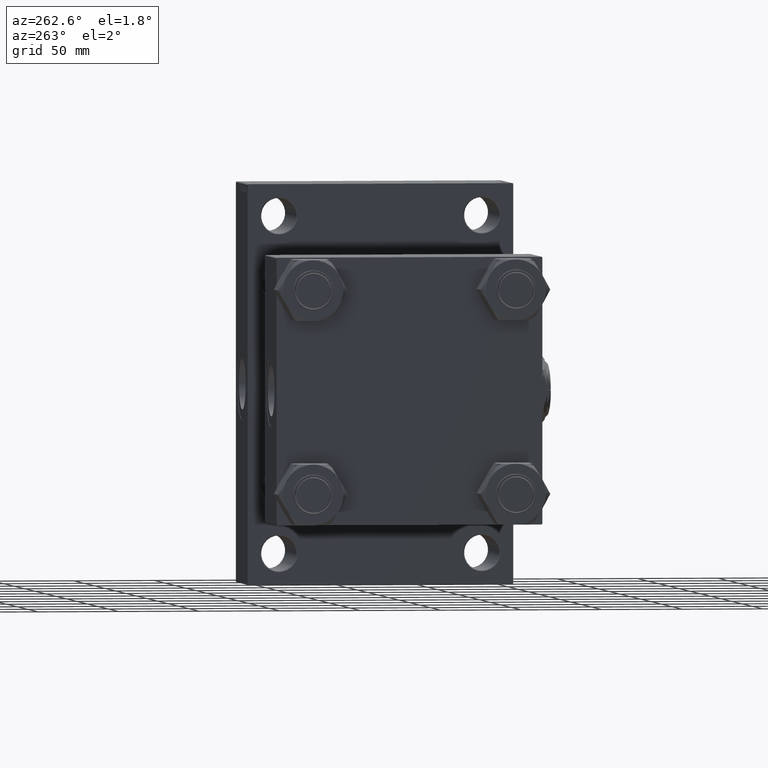
[diagram: clean part render]
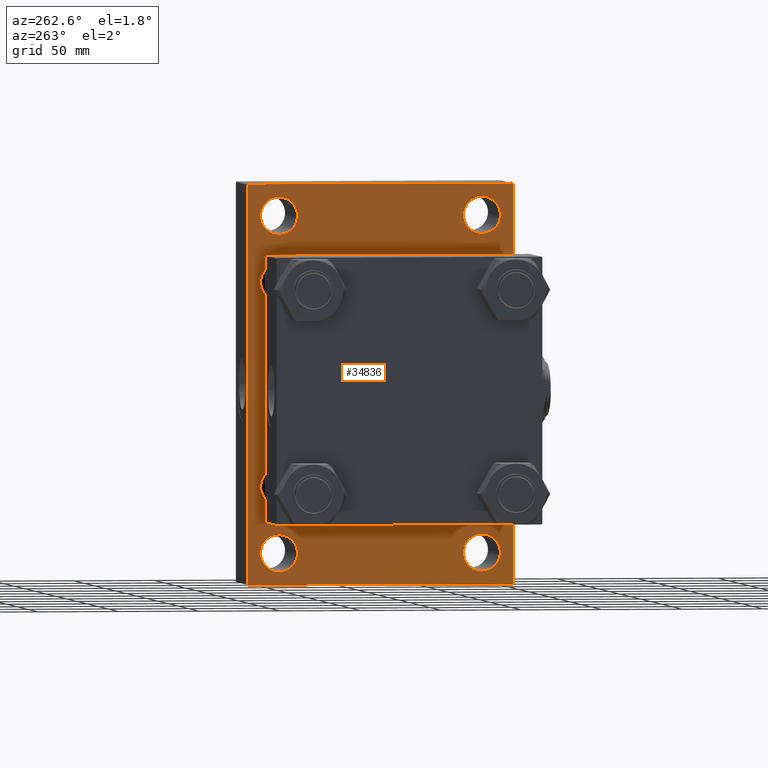
[diagram: same view with one face highlighted and labeled with its STEP entity id]
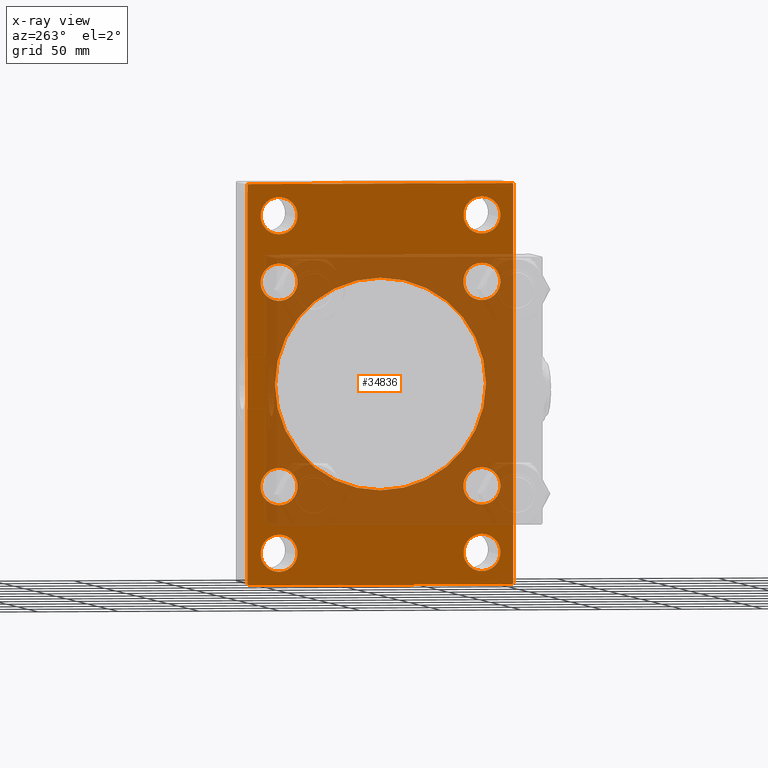
[diagram: x-ray of the same camera — body ghosted, the highlighted face saturated]
A machine part, auxiliary view. The second image highlights one B-rep face of the part: STEP entity #34836.
The next image is the same camera in x-ray: the body ghosted, the highlighted face saturated — about 45% of this face is hidden behind the body in this view.
In plain terms, the highlighted planar face has unit normal (-1, 0, 0).
Its self-contained STEP definition (entity closure, byte-faithful):
#11 = EDGE_LOOP ( 'NONE', ( #40195, #45547 ) ) ;
#81 = CARTESIAN_POINT ( 'NONE',  ( 139.0000000000000000, -63.00000000000000000, 92.49999999999997158 ) ) ;
#334 = CARTESIAN_POINT ( 'NONE',  ( 139.0000000000000000, 62.95000000000000284, 62.95000000000000284 ) ) ;
#359 = AXIS2_PLACEMENT_3D ( 'NONE', #26367, #41776, #19535 ) ;
#531 = ORIENTED_EDGE ( 'NONE', *, *, #44500, .T. ) ;
#672 = CARTESIAN_POINT ( 'NONE',  ( 139.0000000000000000, -62.94999999999998153, -62.95000000000001705 ) ) ;
#783 = CARTESIAN_POINT ( 'NONE',  ( 139.0000000000000000, -102.7499999999988916, -102.7500000000017479 ) ) ;
#827 = DIRECTION ( 'NONE',  ( 0.000000000000000000, 0.000000000000000000, 1.000000000000000000 ) ) ;
#862 = FACE_BOUND ( 'NONE', #28816, .T. ) ;
#994 = CARTESIAN_POINT ( 'NONE',  ( 139.0000000000000000, 63.00000000000000000, -115.5000000000000142 ) ) ;
#1054 = EDGE_CURVE ( 'NONE', #43883, #6599, #35567, .T. ) ;
#1106 = FACE_BOUND ( 'NONE', #11, .T. ) ;
#1349 = DIRECTION ( 'NONE',  ( -0.000000000000000000, 0.000000000000000000, 1.000000000000000000 ) ) ;
#2065 = CARTESIAN_POINT ( 'NONE',  ( 139.0000000000000000, 63.00000000000000000, 104.0000000000000000 ) ) ;
#2169 = ORIENTED_EDGE ( 'NONE', *, *, #1054, .T. ) ;
#2320 = ORIENTED_EDGE ( 'NONE', *, *, #33524, .T. ) ;
#2339 = ORIENTED_EDGE ( 'NONE', *, *, #22973, .T. ) ;
#2595 = DIRECTION ( 'NONE',  ( 0.000000000000000000, 0.000000000000000000, 1.000000000000000000 ) ) ;
#2825 = EDGE_LOOP ( 'NONE', ( #34717, #12685 ) ) ;
#3077 = CARTESIAN_POINT ( 'NONE',  ( 139.0000000000000000, -62.94999999999998153, 62.95000000000001705 ) ) ;
#3181 = VERTEX_POINT ( 'NONE', #35180 ) ;
#3464 = AXIS2_PLACEMENT_3D ( 'NONE', #17461, #28100, #24803 ) ;
#4150 = VERTEX_POINT ( 'NONE', #6727 ) ;
#4330 = EDGE_CURVE ( 'NONE', #47712, #39829, #37856, .T. ) ;
#4336 = EDGE_CURVE ( 'NONE', #23852, #47158, #31409, .T. ) ;
#4452 = AXIS2_PLACEMENT_3D ( 'NONE', #40809, #36511, #32971 ) ;
#4831 = CARTESIAN_POINT ( 'NONE',  ( 139.0000000000000000, 62.95000000000000284, 62.95000000000000284 ) ) ;
#4992 = CARTESIAN_POINT ( 'NONE',  ( 139.0000000000000000, 82.50000000000000000, -123.0000000000000995 ) ) ;
#5194 = LINE ( 'NONE', #20828, #5681 ) ;
#5546 = EDGE_CURVE ( 'NONE', #28701, #44408, #20147, .T. ) ;
#5675 = DIRECTION ( 'NONE',  ( -0.000000000000000000, -0.7071067811865769936, -0.7071067811865181518 ) ) ;
#5681 = VECTOR ( 'NONE', #36010, 1000.000000000000000 ) ;
#6423 = CIRCLE ( 'NONE', #35466, 11.50000000000001066 ) ;
#6599 = VERTEX_POINT ( 'NONE', #32682 ) ;
#6727 = CARTESIAN_POINT ( 'NONE',  ( 139.0000000000000000, 63.00000000000000000, -92.50000000000000000 ) ) ;
#6964 = VERTEX_POINT ( 'NONE', #15389 ) ;
#7147 = ORIENTED_EDGE ( 'NONE', *, *, #4330, .T. ) ;
#7752 = EDGE_CURVE ( 'NONE', #6964, #16685, #5194, .T. ) ;
#7899 = CIRCLE ( 'NONE', #12066, 65.50000000000001421 ) ;
#8323 = VERTEX_POINT ( 'NONE', #994 ) ;
#8394 = DIRECTION ( 'NONE',  ( 0.000000000000000000, 0.000000000000000000, 1.000000000000000000 ) ) ;
#8432 = FACE_BOUND ( 'NONE', #2825, .T. ) ;
#8734 = DIRECTION ( 'NONE',  ( 1.000000000000000000, -0.000000000000000000, 0.000000000000000000 ) ) ;
#8878 = CARTESIAN_POINT ( 'NONE',  ( 139.0000000000000000, 82.49999999999998579, 123.5000000000000142 ) ) ;
#9083 = EDGE_LOOP ( 'NONE', ( #30902, #7147 ) ) ;
#9360 = CARTESIAN_POINT ( 'NONE',  ( 139.0000000000000000, 62.95000000000000284, 51.45000000000000995 ) ) ;
#9376 = LINE ( 'NONE', #8878, #40338 ) ;
#9714 = AXIS2_PLACEMENT_3D ( 'NONE', #24846, #24355, #43318 ) ;
#9820 = VERTEX_POINT ( 'NONE', #21536 ) ;
#10548 = EDGE_CURVE ( 'NONE', #45380, #17076, #25047, .T. ) ;
#10623 = CARTESIAN_POINT ( 'NONE',  ( 139.0000000000000000, -63.00000000000000000, 103.9999999999999858 ) ) ;
#10794 = ORIENTED_EDGE ( 'NONE', *, *, #46258, .T. ) ;
#11227 = AXIS2_PLACEMENT_3D ( 'NONE', #2065, #17456, #16531 ) ;
#11273 = DIRECTION ( 'NONE',  ( 1.000000000000000000, 0.000000000000000000, 0.000000000000000000 ) ) ;
#11638 = EDGE_CURVE ( 'NONE', #35003, #9820, #37207, .T. ) ;
#11779 = DIRECTION ( 'NONE',  ( 0.000000000000000000, 0.000000000000000000, -1.000000000000000000 ) ) ;
#11791 = DIRECTION ( 'NONE',  ( 0.000000000000000000, 0.000000000000000000, 1.000000000000000000 ) ) ;
#12066 = AXIS2_PLACEMENT_3D ( 'NONE', #13782, #24406, #21099 ) ;
#12536 = DIRECTION ( 'NONE',  ( 0.000000000000000000, 0.000000000000000000, 1.000000000000000000 ) ) ;
#12685 = ORIENTED_EDGE ( 'NONE', *, *, #11638, .T. ) ;
#12728 = CARTESIAN_POINT ( 'NONE',  ( 139.0000000000000000, 82.00000000000005684, -123.5000000000000000 ) ) ;
#13210 = DIRECTION ( 'NONE',  ( -1.000000000000000000, 0.000000000000000000, -0.000000000000000000 ) ) ;
#13242 = VECTOR ( 'NONE', #5675, 1000.000000000000000 ) ;
#13527 = LINE ( 'NONE', #32244, #42095 ) ;
#13542 = VECTOR ( 'NONE', #43645, 1000.000000000000000 ) ;
#13686 = ORIENTED_EDGE ( 'NONE', *, *, #4336, .T. ) ;
#13782 = CARTESIAN_POINT ( 'NONE',  ( 139.0000000000000000, -2.602085213965210642E-15, 0.000000000000000000 ) ) ;
#13824 = AXIS2_PLACEMENT_3D ( 'NONE', #4831, #46763, #35653 ) ;
#13826 = DIRECTION ( 'NONE',  ( 0.000000000000000000, -0.7071067811865573427, 0.7071067811865378028 ) ) ;
#13958 = DIRECTION ( 'NONE',  ( 1.000000000000000000, -0.000000000000000000, 0.000000000000000000 ) ) ;
#14004 = CARTESIAN_POINT ( 'NONE',  ( 139.0000000000000000, 102.7499999999966320, -102.7500000000051870 ) ) ;
#14102 = EDGE_LOOP ( 'NONE', ( #30579, #31141 ) ) ;
#14203 = DIRECTION ( 'NONE',  ( 1.000000000000000000, -0.000000000000000000, 0.000000000000000000 ) ) ;
#14233 = ORIENTED_EDGE ( 'NONE', *, *, #48106, .T. ) ;
#15115 = AXIS2_PLACEMENT_3D ( 'NONE', #21592, #33973, #22582 ) ;
#15306 = ORIENTED_EDGE ( 'NONE', *, *, #7752, .T. ) ;
#15389 = CARTESIAN_POINT ( 'NONE',  ( 139.0000000000000000, 82.49999999999998579, 123.0000000000000142 ) ) ;
#15875 = LINE ( 'NONE', #30545, #20091 ) ;
#16036 = CARTESIAN_POINT ( 'NONE',  ( 139.0000000000000000, -63.00000000000000000, -104.0000000000000142 ) ) ;
#16531 = DIRECTION ( 'NONE',  ( 0.000000000000000000, 0.000000000000000000, 1.000000000000000000 ) ) ;
#16685 = VERTEX_POINT ( 'NONE', #4992 ) ;
#16943 = CARTESIAN_POINT ( 'NONE',  ( 139.0000000000000000, -62.94999999999998153, 51.45000000000000995 ) ) ;
#17076 = VERTEX_POINT ( 'NONE', #20074 ) ;
#17456 = DIRECTION ( 'NONE',  ( 1.000000000000000000, -0.000000000000000000, 0.000000000000000000 ) ) ;
#17461 = CARTESIAN_POINT ( 'NONE',  ( 139.0000000000000000, -63.00000000000000000, -104.0000000000000142 ) ) ;
#17690 = ORIENTED_EDGE ( 'NONE', *, *, #43417, .T. ) ;
#17740 = VECTOR ( 'NONE', #13826, 1000.000000000000000 ) ;
#18223 = EDGE_CURVE ( 'NONE', #16685, #32351, #24867, .T. ) ;
#18226 = DIRECTION ( 'NONE',  ( 0.000000000000000000, 0.000000000000000000, 1.000000000000000000 ) ) ;
#18407 = CARTESIAN_POINT ( 'NONE',  ( 139.0000000000000000, 82.00000000000004263, 123.5000000000000142 ) ) ;
#18439 = DIRECTION ( 'NONE',  ( 1.000000000000000000, -0.000000000000000000, 0.000000000000000000 ) ) ;
#18440 = ORIENTED_EDGE ( 'NONE', *, *, #28283, .T. ) ;
#18686 = DIRECTION ( 'NONE',  ( 0.000000000000000000, 0.000000000000000000, -1.000000000000000000 ) ) ;
#18961 = CARTESIAN_POINT ( 'NONE',  ( 139.0000000000000000, -63.00000000000000000, -115.5000000000000142 ) ) ;
#19352 = CARTESIAN_POINT ( 'NONE',  ( 139.0000000000000000, -2.602085213965210642E-15, 0.000000000000000000 ) ) ;
#19535 = DIRECTION ( 'NONE',  ( 0.000000000000000000, 0.000000000000000000, 1.000000000000000000 ) ) ;
#19984 = VERTEX_POINT ( 'NONE', #18407 ) ;
#20074 = CARTESIAN_POINT ( 'NONE',  ( 139.0000000000000000, -63.00000000000000000, 115.4999999999999858 ) ) ;
#20091 = VECTOR ( 'NONE', #45940, 1000.000000000000000 ) ;
#20147 = CIRCLE ( 'NONE', #48385, 11.50000000000001066 ) ;
#20445 = DIRECTION ( 'NONE',  ( 0.000000000000000000, 0.000000000000000000, 1.000000000000000000 ) ) ;
#20492 = EDGE_CURVE ( 'NONE', #30319, #44283, #32684, .T. ) ;
#20778 = FACE_OUTER_BOUND ( 'NONE', #37008, .T. ) ;
#20828 = CARTESIAN_POINT ( 'NONE',  ( 139.0000000000000000, 82.49999999999998579, 123.5000000000000142 ) ) ;
#20948 = EDGE_CURVE ( 'NONE', #44408, #28701, #38359, .T. ) ;
#21099 = DIRECTION ( 'NONE',  ( 0.000000000000000000, 0.000000000000000000, -1.000000000000000000 ) ) ;
#21164 = AXIS2_PLACEMENT_3D ( 'NONE', #48066, #13958, #2595 ) ;
#21521 = ORIENTED_EDGE ( 'NONE', *, *, #20492, .T. ) ;
#21536 = CARTESIAN_POINT ( 'NONE',  ( 139.0000000000000000, 62.95000000000000284, 74.45000000000000284 ) ) ;
#21592 = CARTESIAN_POINT ( 'NONE',  ( 139.0000000000000000, 63.00000000000000000, 104.0000000000000000 ) ) ;
#21711 = AXIS2_PLACEMENT_3D ( 'NONE', #39759, #13210, #1349 ) ;
#22442 = CARTESIAN_POINT ( 'NONE',  ( 139.0000000000000000, -62.94999999999998153, -74.45000000000001705 ) ) ;
#22453 = CIRCLE ( 'NONE', #28933, 65.50000000000001421 ) ;
#22582 = DIRECTION ( 'NONE',  ( 0.000000000000000000, 0.000000000000000000, 1.000000000000000000 ) ) ;
#22726 = DIRECTION ( 'NONE',  ( 0.000000000000000000, 0.000000000000000000, 1.000000000000000000 ) ) ;
#22973 = EDGE_CURVE ( 'NONE', #48971, #47720, #48442, .T. ) ;
#23573 = EDGE_CURVE ( 'NONE', #37426, #3181, #48790, .T. ) ;
#23852 = VERTEX_POINT ( 'NONE', #18961 ) ;
#24334 = PLANE ( 'NONE',  #21711 ) ;
#24355 = DIRECTION ( 'NONE',  ( 1.000000000000000000, -0.000000000000000000, 0.000000000000000000 ) ) ;
#24406 = DIRECTION ( 'NONE',  ( 1.000000000000000000, 0.000000000000000000, 0.000000000000000000 ) ) ;
#24735 = DIRECTION ( 'NONE',  ( 1.000000000000000000, -0.000000000000000000, 0.000000000000000000 ) ) ;
#24803 = DIRECTION ( 'NONE',  ( 0.000000000000000000, 0.000000000000000000, 1.000000000000000000 ) ) ;
#24846 = CARTESIAN_POINT ( 'NONE',  ( 139.0000000000000000, -63.00000000000000000, 103.9999999999999858 ) ) ;
#24867 = LINE ( 'NONE', #14004, #13242 ) ;
#25047 = CIRCLE ( 'NONE', #9714, 11.50000000000001066 ) ;
#26367 = CARTESIAN_POINT ( 'NONE',  ( 139.0000000000000000, -62.94999999999998153, -62.95000000000001705 ) ) ;
#26704 = AXIS2_PLACEMENT_3D ( 'NONE', #334, #27352, #827 ) ;
#27248 = CIRCLE ( 'NONE', #15115, 11.50000000000001066 ) ;
#27352 = DIRECTION ( 'NONE',  ( 1.000000000000000000, -0.000000000000000000, 0.000000000000000000 ) ) ;
#28100 = DIRECTION ( 'NONE',  ( 1.000000000000000000, -0.000000000000000000, 0.000000000000000000 ) ) ;
#28283 = EDGE_CURVE ( 'NONE', #44283, #30319, #32015, .T. ) ;
#28383 = FACE_BOUND ( 'NONE', #14102, .T. ) ;
#28545 = CARTESIAN_POINT ( 'NONE',  ( 139.0000000000000000, -62.94999999999998153, 74.45000000000003126 ) ) ;
#28582 = ORIENTED_EDGE ( 'NONE', *, *, #39050, .F. ) ;
#28633 = FACE_BOUND ( 'NONE', #44580, .T. ) ;
#28701 = VERTEX_POINT ( 'NONE', #28545 ) ;
#28816 = EDGE_LOOP ( 'NONE', ( #10794, #13686 ) ) ;
#28933 = AXIS2_PLACEMENT_3D ( 'NONE', #19352, #11273, #11779 ) ;
#29102 = DIRECTION ( 'NONE',  ( 1.000000000000000000, -0.000000000000000000, 0.000000000000000000 ) ) ;
#29343 = CARTESIAN_POINT ( 'NONE',  ( 139.0000000000000000, -82.50000000000002842, 123.4999999999999716 ) ) ;
#30086 = LINE ( 'NONE', #29343, #39431 ) ;
#30319 = VERTEX_POINT ( 'NONE', #32958 ) ;
#30545 = CARTESIAN_POINT ( 'NONE',  ( 139.0000000000000000, 82.50000000000000000, -123.5000000000000000 ) ) ;
#30579 = ORIENTED_EDGE ( 'NONE', *, *, #37646, .T. ) ;
#30900 = DIRECTION ( 'NONE',  ( 1.000000000000000000, -0.000000000000000000, 0.000000000000000000 ) ) ;
#30902 = ORIENTED_EDGE ( 'NONE', *, *, #31267, .T. ) ;
#31141 = ORIENTED_EDGE ( 'NONE', *, *, #35373, .T. ) ;
#31267 = EDGE_CURVE ( 'NONE', #39829, #47712, #27248, .T. ) ;
#31409 = CIRCLE ( 'NONE', #47554, 11.50000000000001066 ) ;
#31736 = CARTESIAN_POINT ( 'NONE',  ( 139.0000000000000000, -82.50000000000002842, -123.0000000000000284 ) ) ;
#31795 = AXIS2_PLACEMENT_3D ( 'NONE', #3077, #14203, #18226 ) ;
#31926 = FACE_BOUND ( 'NONE', #9083, .T. ) ;
#32015 = CIRCLE ( 'NONE', #32800, 11.49999999999999645 ) ;
#32244 = CARTESIAN_POINT ( 'NONE',  ( 139.0000000000000000, 102.7500000000046043, 102.7499999999931788 ) ) ;
#32323 = CARTESIAN_POINT ( 'NONE',  ( 139.0000000000000000, 63.00000000000000000, -104.0000000000000142 ) ) ;
#32351 = VERTEX_POINT ( 'NONE', #12728 ) ;
#32682 = CARTESIAN_POINT ( 'NONE',  ( 139.0000000000000000, -82.00000000000009948, 123.4999999999999716 ) ) ;
#32684 = CIRCLE ( 'NONE', #4452, 11.49999999999999645 ) ;
#32707 = EDGE_CURVE ( 'NONE', #43883, #47720, #30086, .T. ) ;
#32800 = AXIS2_PLACEMENT_3D ( 'NONE', #46538, #30900, #8394 ) ;
#32958 = CARTESIAN_POINT ( 'NONE',  ( 139.0000000000000000, 62.95000000000000284, -74.45000000000000284 ) ) ;
#32971 = DIRECTION ( 'NONE',  ( 0.000000000000000000, 0.000000000000000000, 1.000000000000000000 ) ) ;
#33113 = CARTESIAN_POINT ( 'NONE',  ( 139.0000000000000000, 5.419351320449953395E-15, -65.50000000000001421 ) ) ;
#33347 = CARTESIAN_POINT ( 'NONE',  ( 139.0000000000000000, -63.00000000000000000, -92.50000000000000000 ) ) ;
#33524 = EDGE_CURVE ( 'NONE', #32351, #48971, #15875, .T. ) ;
#33973 = DIRECTION ( 'NONE',  ( 1.000000000000000000, -0.000000000000000000, 0.000000000000000000 ) ) ;
#34053 = AXIS2_PLACEMENT_3D ( 'NONE', #10623, #18439, #22726 ) ;
#34467 = CARTESIAN_POINT ( 'NONE',  ( 139.0000000000000000, -82.00000000000002842, -123.5000000000000142 ) ) ;
#34717 = ORIENTED_EDGE ( 'NONE', *, *, #42112, .T. ) ;
#34836 = ADVANCED_FACE ( 'NONE', ( #44045, #862, #40000, #31926, #1106, #8432, #47828, #28633, #28383, #20778 ), #24334, .T. ) ;
#34919 = CIRCLE ( 'NONE', #49451, 11.49999999999999645 ) ;
#35003 = VERTEX_POINT ( 'NONE', #9360 ) ;
#35053 = VERTEX_POINT ( 'NONE', #33113 ) ;
#35152 = EDGE_LOOP ( 'NONE', ( #18440, #21521 ) ) ;
#35180 = CARTESIAN_POINT ( 'NONE',  ( 139.0000000000000000, -62.94999999999998153, -51.45000000000002416 ) ) ;
#35288 = DIRECTION ( 'NONE',  ( 1.000000000000000000, -0.000000000000000000, 0.000000000000000000 ) ) ;
#35373 = EDGE_CURVE ( 'NONE', #35053, #39725, #7899, .T. ) ;
#35466 = AXIS2_PLACEMENT_3D ( 'NONE', #32323, #24735, #20445 ) ;
#35551 = ORIENTED_EDGE ( 'NONE', *, *, #23573, .T. ) ;
#35567 = LINE ( 'NONE', #39852, #13542 ) ;
#35620 = CIRCLE ( 'NONE', #13824, 11.49999999999999645 ) ;
#35653 = DIRECTION ( 'NONE',  ( 0.000000000000000000, 0.000000000000000000, 1.000000000000000000 ) ) ;
#35671 = CARTESIAN_POINT ( 'NONE',  ( 139.0000000000000000, 62.95000000000000284, -51.45000000000000995 ) ) ;
#35753 = CIRCLE ( 'NONE', #3464, 11.50000000000001066 ) ;
#35760 = ORIENTED_EDGE ( 'NONE', *, *, #48705, .T. ) ;
#35813 = EDGE_LOOP ( 'NONE', ( #43287, #14233 ) ) ;
#36010 = DIRECTION ( 'NONE',  ( 0.000000000000000000, 5.618537574013950123E-17, -1.000000000000000000 ) ) ;
#36031 = DIRECTION ( 'NONE',  ( 0.000000000000000000, 0.7071067811865081598, -0.7071067811865868746 ) ) ;
#36511 = DIRECTION ( 'NONE',  ( 1.000000000000000000, -0.000000000000000000, 0.000000000000000000 ) ) ;
#36679 = DIRECTION ( 'NONE',  ( 0.000000000000000000, 0.000000000000000000, 1.000000000000000000 ) ) ;
#37008 = EDGE_LOOP ( 'NONE', ( #2320, #2339, #40778, #2169, #28582, #17690, #15306, #43074 ) ) ;
#37207 = CIRCLE ( 'NONE', #26704, 11.49999999999999645 ) ;
#37426 = VERTEX_POINT ( 'NONE', #22442 ) ;
#37646 = EDGE_CURVE ( 'NONE', #39725, #35053, #22453, .T. ) ;
#37856 = CIRCLE ( 'NONE', #11227, 11.50000000000001066 ) ;
#38359 = CIRCLE ( 'NONE', #31795, 11.50000000000001066 ) ;
#38713 = CARTESIAN_POINT ( 'NONE',  ( 139.0000000000000000, -82.50000000000002842, 123.0000000000000853 ) ) ;
#39050 = EDGE_CURVE ( 'NONE', #19984, #6599, #9376, .T. ) ;
#39348 = EDGE_CURVE ( 'NONE', #4150, #8323, #6423, .T. ) ;
#39431 = VECTOR ( 'NONE', #18686, 1000.000000000000000 ) ;
#39455 = DIRECTION ( 'NONE',  ( 0.000000000000000000, -1.000000000000000000, -2.523234146875355505E-16 ) ) ;
#39719 = CIRCLE ( 'NONE', #21164, 11.50000000000001066 ) ;
#39725 = VERTEX_POINT ( 'NONE', #45116 ) ;
#39759 = CARTESIAN_POINT ( 'NONE',  ( 139.0000000000000000, 0.000000000000000000, 0.000000000000000000 ) ) ;
#39829 = VERTEX_POINT ( 'NONE', #49161 ) ;
#39852 = CARTESIAN_POINT ( 'NONE',  ( 139.0000000000000000, -102.7499999999966036, 102.7500000000051728 ) ) ;
#40000 = FACE_BOUND ( 'NONE', #35813, .T. ) ;
#40195 = ORIENTED_EDGE ( 'NONE', *, *, #5546, .T. ) ;
#40338 = VECTOR ( 'NONE', #39455, 1000.000000000000000 ) ;
#40778 = ORIENTED_EDGE ( 'NONE', *, *, #32707, .F. ) ;
#40809 = CARTESIAN_POINT ( 'NONE',  ( 139.0000000000000000, 62.95000000000000284, -62.95000000000000284 ) ) ;
#41131 = EDGE_LOOP ( 'NONE', ( #531, #41560 ) ) ;
#41300 = CIRCLE ( 'NONE', #34053, 11.50000000000001066 ) ;
#41560 = ORIENTED_EDGE ( 'NONE', *, *, #10548, .T. ) ;
#41776 = DIRECTION ( 'NONE',  ( 1.000000000000000000, -0.000000000000000000, 0.000000000000000000 ) ) ;
#42095 = VECTOR ( 'NONE', #36031, 1000.000000000000000 ) ;
#42112 = EDGE_CURVE ( 'NONE', #9820, #35003, #35620, .T. ) ;
#42879 = CARTESIAN_POINT ( 'NONE',  ( 139.0000000000000000, -62.94999999999998153, 62.95000000000001705 ) ) ;
#43074 = ORIENTED_EDGE ( 'NONE', *, *, #18223, .T. ) ;
#43287 = ORIENTED_EDGE ( 'NONE', *, *, #39348, .T. ) ;
#43318 = DIRECTION ( 'NONE',  ( 0.000000000000000000, 0.000000000000000000, 1.000000000000000000 ) ) ;
#43417 = EDGE_CURVE ( 'NONE', #19984, #6964, #13527, .T. ) ;
#43645 = DIRECTION ( 'NONE',  ( -0.000000000000000000, 0.7071067811865769936, 0.7071067811865181518 ) ) ;
#43883 = VERTEX_POINT ( 'NONE', #38713 ) ;
#44045 = FACE_BOUND ( 'NONE', #41131, .T. ) ;
#44283 = VERTEX_POINT ( 'NONE', #35671 ) ;
#44408 = VERTEX_POINT ( 'NONE', #16943 ) ;
#44500 = EDGE_CURVE ( 'NONE', #17076, #45380, #41300, .T. ) ;
#44580 = EDGE_LOOP ( 'NONE', ( #35760, #35551 ) ) ;
#45116 = CARTESIAN_POINT ( 'NONE',  ( 139.0000000000000000, -2.602085213965210642E-15, 65.50000000000001421 ) ) ;
#45380 = VERTEX_POINT ( 'NONE', #81 ) ;
#45547 = ORIENTED_EDGE ( 'NONE', *, *, #20948, .T. ) ;
#45940 = DIRECTION ( 'NONE',  ( 0.000000000000000000, -1.000000000000000000, -8.410780489584517938E-17 ) ) ;
#46258 = EDGE_CURVE ( 'NONE', #47158, #23852, #35753, .T. ) ;
#46538 = CARTESIAN_POINT ( 'NONE',  ( 139.0000000000000000, 62.95000000000000284, -62.95000000000000284 ) ) ;
#46763 = DIRECTION ( 'NONE',  ( 1.000000000000000000, -0.000000000000000000, 0.000000000000000000 ) ) ;
#47158 = VERTEX_POINT ( 'NONE', #33347 ) ;
#47554 = AXIS2_PLACEMENT_3D ( 'NONE', #16036, #29102, #36679 ) ;
#47629 = CARTESIAN_POINT ( 'NONE',  ( 139.0000000000000000, 63.00000000000000000, 92.49999999999998579 ) ) ;
#47712 = VERTEX_POINT ( 'NONE', #47629 ) ;
#47720 = VERTEX_POINT ( 'NONE', #31736 ) ;
#47828 = FACE_BOUND ( 'NONE', #35152, .T. ) ;
#48066 = CARTESIAN_POINT ( 'NONE',  ( 139.0000000000000000, 63.00000000000000000, -104.0000000000000142 ) ) ;
#48106 = EDGE_CURVE ( 'NONE', #8323, #4150, #39719, .T. ) ;
#48385 = AXIS2_PLACEMENT_3D ( 'NONE', #42879, #35288, #11791 ) ;
#48442 = LINE ( 'NONE', #783, #17740 ) ;
#48705 = EDGE_CURVE ( 'NONE', #3181, #37426, #34919, .T. ) ;
#48790 = CIRCLE ( 'NONE', #359, 11.49999999999999645 ) ;
#48971 = VERTEX_POINT ( 'NONE', #34467 ) ;
#49161 = CARTESIAN_POINT ( 'NONE',  ( 139.0000000000000000, 63.00000000000000000, 115.5000000000000000 ) ) ;
#49451 = AXIS2_PLACEMENT_3D ( 'NONE', #672, #8734, #12536 ) ;